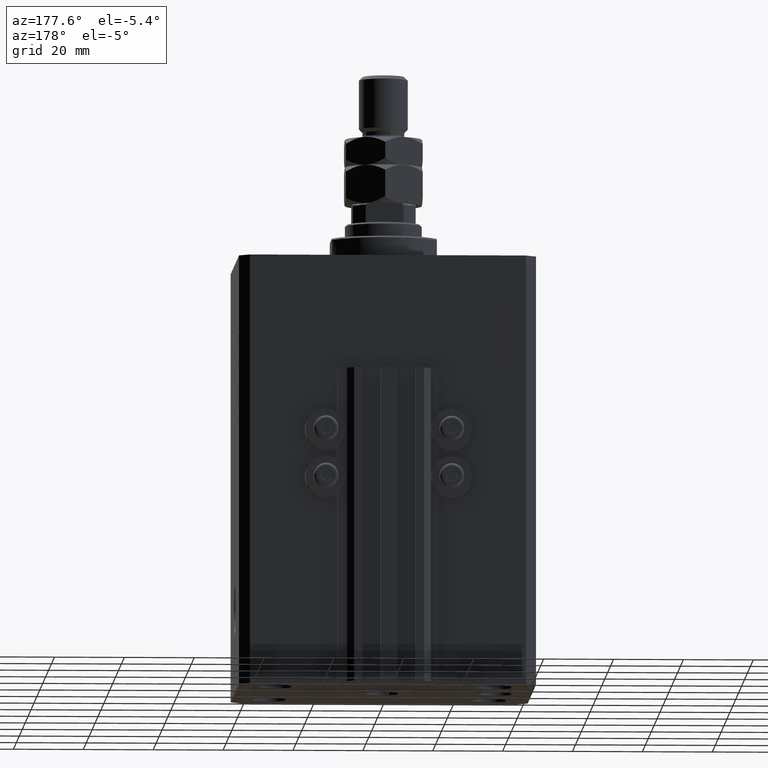
[diagram: clean part render]
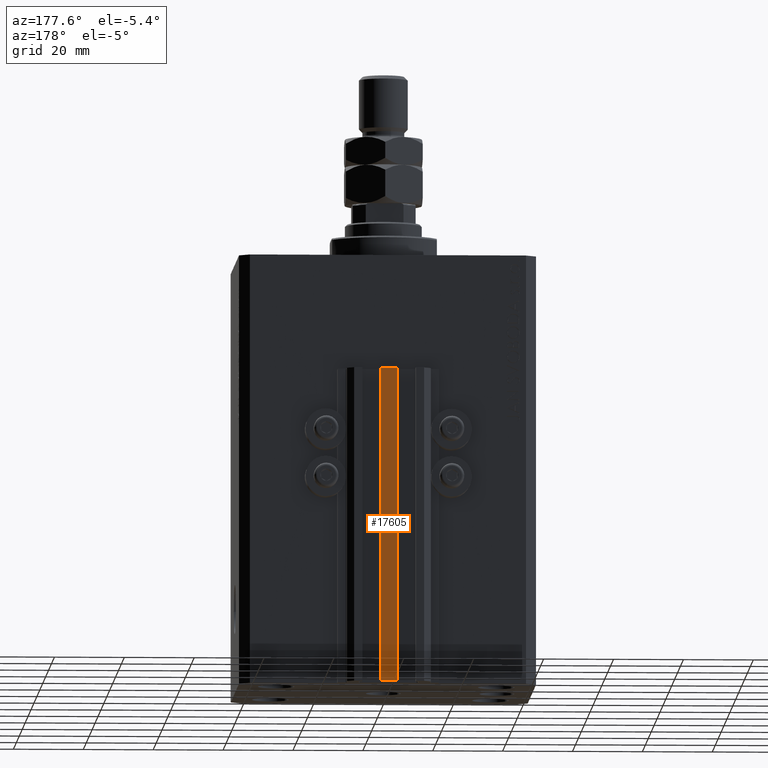
[diagram: same view with one face highlighted and labeled with its STEP entity id]
A machine part, auxiliary view. The second image highlights one B-rep face of the part: STEP entity #17605.
In plain terms, the highlighted planar face has unit normal (0, -1, 0).
Its self-contained STEP definition (entity closure, byte-faithful):
#465 = ORIENTED_EDGE ( 'NONE', *, *, #38051, .T. ) ;
#1224 = ORIENTED_EDGE ( 'NONE', *, *, #30238, .F. ) ;
#1739 = CARTESIAN_POINT ( 'NONE',  ( -2.350000000000003642, 39.50000000000000711, -33.00000000000000000 ) ) ;
#4162 = DIRECTION ( 'NONE',  ( 0.000000000000000000, -1.000000000000000000, 0.000000000000000000 ) ) ;
#5103 = EDGE_CURVE ( 'NONE', #16724, #48298, #13499, .T. ) ;
#7475 = DIRECTION ( 'NONE',  ( 1.000000000000000000, 0.000000000000000000, 0.000000000000000000 ) ) ;
#7883 = CARTESIAN_POINT ( 'NONE',  ( -2.350000000000003642, 39.50000000000000711, -123.0000000000000000 ) ) ;
#10463 = CARTESIAN_POINT ( 'NONE',  ( 2.349999999999999645, 39.50000000000000711, -123.0000000000000000 ) ) ;
#10705 = DIRECTION ( 'NONE',  ( 1.000000000000000000, 0.000000000000000000, 0.000000000000000000 ) ) ;
#11036 = CARTESIAN_POINT ( 'NONE',  ( 2.349999999999999645, 39.50000000000000711, -123.0000000000000000 ) ) ;
#11154 = VERTEX_POINT ( 'NONE', #11036 ) ;
#11480 = VECTOR ( 'NONE', #43650, 1000.000000000000000 ) ;
#11601 = FACE_OUTER_BOUND ( 'NONE', #47536, .T. ) ;
#11791 = VECTOR ( 'NONE', #24799, 1000.000000000000000 ) ;
#12348 = ORIENTED_EDGE ( 'NONE', *, *, #26154, .F. ) ;
#12681 = ORIENTED_EDGE ( 'NONE', *, *, #5103, .T. ) ;
#13499 = LINE ( 'NONE', #40428, #11480 ) ;
#13818 = VERTEX_POINT ( 'NONE', #45776 ) ;
#16394 = AXIS2_PLACEMENT_3D ( 'NONE', #7883, #4162, #43201 ) ;
#16724 = VERTEX_POINT ( 'NONE', #25473 ) ;
#17155 = LINE ( 'NONE', #10463, #11791 ) ;
#17605 = ADVANCED_FACE ( 'NONE', ( #11601 ), #41740, .F. ) ;
#24799 = DIRECTION ( 'NONE',  ( 0.000000000000000000, 0.000000000000000000, 1.000000000000000000 ) ) ;
#25473 = CARTESIAN_POINT ( 'NONE',  ( -2.350000000000003642, 39.50000000000000711, -123.0000000000000000 ) ) ;
#26154 = EDGE_CURVE ( 'NONE', #11154, #13818, #17155, .T. ) ;
#29302 = VECTOR ( 'NONE', #10705, 1000.000000000000000 ) ;
#30238 = EDGE_CURVE ( 'NONE', #16724, #11154, #48784, .T. ) ;
#38051 = EDGE_CURVE ( 'NONE', #48298, #13818, #45302, .T. ) ;
#40428 = CARTESIAN_POINT ( 'NONE',  ( -2.350000000000003642, 39.50000000000000711, -123.0000000000000000 ) ) ;
#41343 = CARTESIAN_POINT ( 'NONE',  ( -2.350000000000003642, 39.50000000000000711, -33.00000000000000000 ) ) ;
#41740 = PLANE ( 'NONE',  #16394 ) ;
#43201 = DIRECTION ( 'NONE',  ( 0.000000000000000000, -0.000000000000000000, -1.000000000000000000 ) ) ;
#43650 = DIRECTION ( 'NONE',  ( 0.000000000000000000, 0.000000000000000000, 1.000000000000000000 ) ) ;
#45302 = LINE ( 'NONE', #41343, #47576 ) ;
#45776 = CARTESIAN_POINT ( 'NONE',  ( 2.349999999999999645, 39.50000000000000711, -33.00000000000000000 ) ) ;
#47536 = EDGE_LOOP ( 'NONE', ( #465, #12348, #1224, #12681 ) ) ;
#47576 = VECTOR ( 'NONE', #7475, 1000.000000000000000 ) ;
#48290 = CARTESIAN_POINT ( 'NONE',  ( -2.350000000000003642, 39.50000000000000711, -123.0000000000000000 ) ) ;
#48298 = VERTEX_POINT ( 'NONE', #1739 ) ;
#48784 = LINE ( 'NONE', #48290, #29302 ) ;